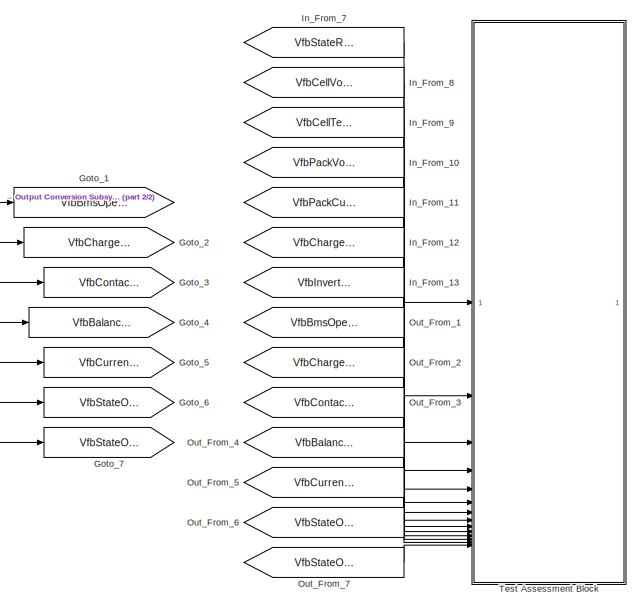
[diagram: root canvas - part 1/2, right side, full height]
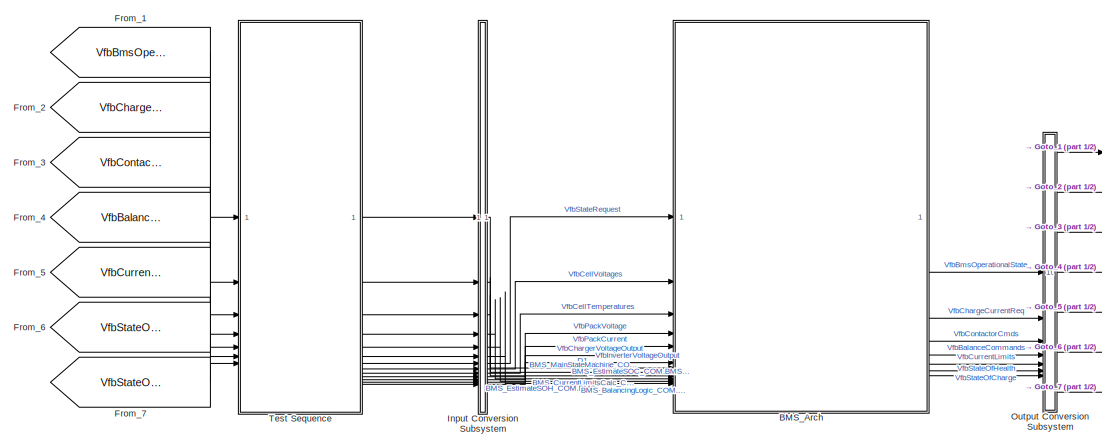
[diagram: root canvas - part 2/2, middle left region]
MODEL slx_618e8ea92ad0
KIND model
CONFIG AbsTol = auto
CONFIG EnableMultiTasking = on
CONFIG FixedStep = auto
CONFIG MaxStep = auto
CONFIG MinStep = auto
CONFIG RelTol = 1e-3
CONFIG SampleTimeConstraint = Unconstrained
CONFIG SolverName = FixedStepDiscrete
CONFIG StartTime = 0.0
CONFIG StopTime = 10.0
BLOCK [ModelReference] BMS_Arch
  AutoFillPortDiscreteRates = off
  CachedPortDiscreteRates = {'',0.05;'BMS_MainStateMachine_COM.BMS_MainStateMachine_Task',0.05;'BMS_CurrentLimitsCalc_COM.BMS_CurrentLimitsCalc_Task',0.1;'BMS_EstimateSOC_COM.BMS_EstimateSOC_Task',0.2;'BMS_EstimateSOH_COM.BMS_EstimateSOH_Task',0.2;'BMS_BalancingLogic_COM.BMS_BalancingLogic_Task',0.25}
  ModelEventPortInfo = P:D1[0.05][0][0],P:BMS_MainStateMachine_COM.BMS_MainStateMachine_Task[0.05][1][0],P:BMS_CurrentLimitsCalc_COM.BMS_CurrentLimitsCalc_Task[0.1][1][0],P:BMS_EstimateSOC_COM.BMS_EstimateSOC_Task[0.2][1][0],P:BMS_EstimateSOH_COM.BMS_EstimateSOH_Task[0.2][1][0],P:BMS_BalancingLogic_COM.BMS_BalancingLogic_Task[0.25][1][0]
  ModelNameDialog = BMS_Arch
  ModelReferenceVersion = 1.62
  PortDiscreteRates = {'',0.05;'BMS_MainStateMachine_COM.BMS_MainStateMachine_Task',0.05;'BMS_CurrentLimitsCalc_COM.BMS_CurrentLimitsCalc_Task',0.1;'BMS_EstimateSOC_COM.BMS_EstimateSOC_Task',0.2;'BMS_EstimateSOH_COM.BMS_EstimateSOH_Task',0.2;'BMS_BalancingLogic_COM.BMS_BalancingLogic_Task',0.25}
  ScheduleRates = on
BLOCK [From] From_1
  GotoTag = VfbBmsOperationalState_S
BLOCK [From] From_2
  GotoTag = VfbChargeCurrentReq_S
BLOCK [From] From_3
  GotoTag = VfbContactorCmds_S
BLOCK [From] From_4
  GotoTag = VfbBalanceCommands_S
BLOCK [From] From_5
  GotoTag = VfbCurrentLimits_S
BLOCK [From] From_6
  GotoTag = VfbStateOfCharge_S
BLOCK [From] From_7
  GotoTag = VfbStateOfHealth_S
BLOCK [Goto] Goto_1
  GotoTag = VfbBmsOperationalState_S
BLOCK [Goto] Goto_2
  GotoTag = VfbChargeCurrentReq_S
BLOCK [Goto] Goto_3
  GotoTag = VfbContactorCmds_S
BLOCK [Goto] Goto_4
  GotoTag = VfbBalanceCommands_S
BLOCK [Goto] Goto_5
  GotoTag = VfbCurrentLimits_S
BLOCK [Goto] Goto_6
  GotoTag = VfbStateOfCharge_S
BLOCK [Goto] Goto_7
  GotoTag = VfbStateOfHealth_S
BLOCK [From] In_From_10
  GotoTag = VfbPackVoltage_A
  TagVisibility = global
BLOCK [From] In_From_11
  GotoTag = VfbPackCurrent_A
  TagVisibility = global
BLOCK [From] In_From_12
  GotoTag = VfbChargerVoltageOutput_A
  TagVisibility = global
BLOCK [From] In_From_13
  GotoTag = VfbInverterVoltageOutput_A
  TagVisibility = global
BLOCK [From] In_From_7
  GotoTag = VfbStateRequest_A
  TagVisibility = global
BLOCK [From] In_From_8
  GotoTag = VfbCellVoltages_A
  TagVisibility = global
BLOCK [From] In_From_9
  GotoTag = VfbCellTemperatures_A
  TagVisibility = global
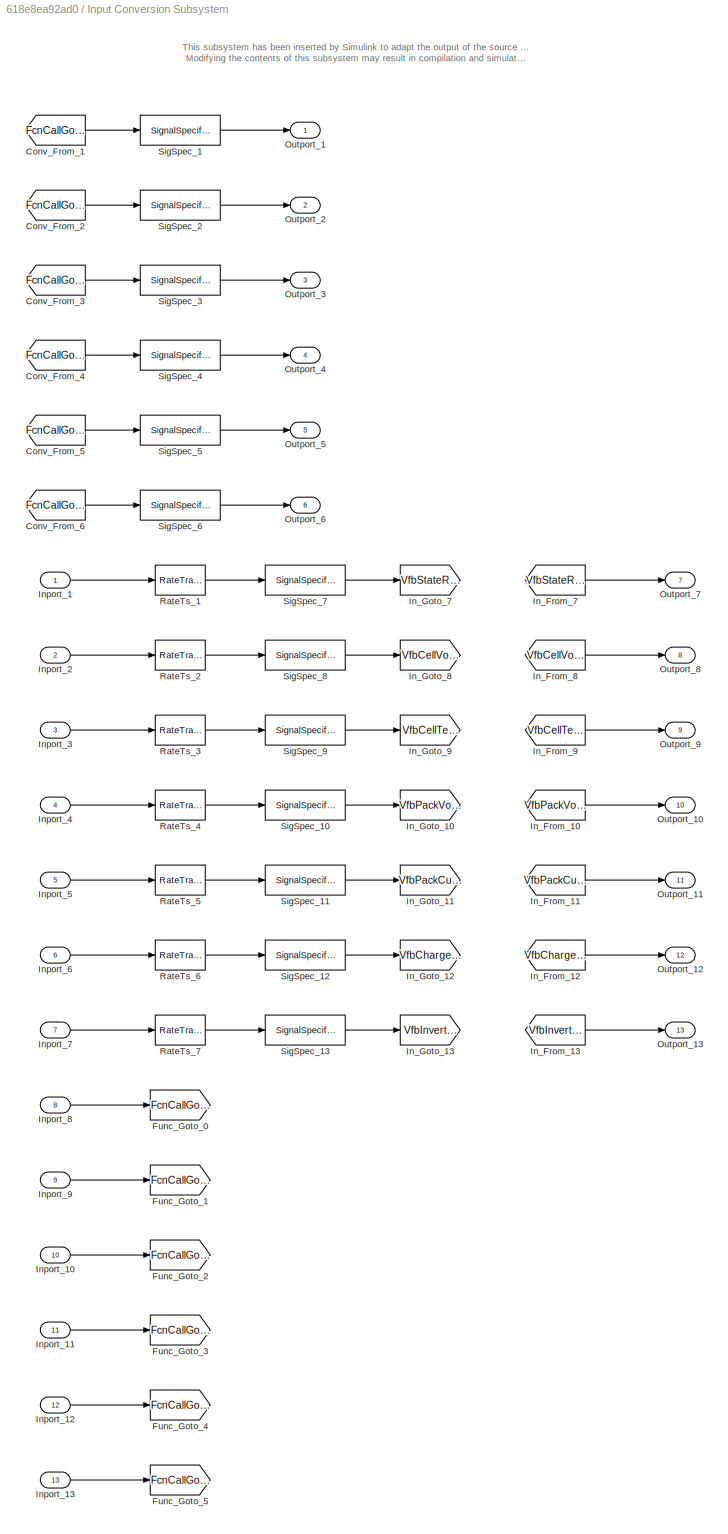
BLOCK [SubSystem] Input Conversion Subsystem
  AttributesFormatString = %<Description>
  Description = Signal spec.\nand routing
  Permissions = ReadOnly
  PermitHierarchicalResolution = ExplicitOnly
  Tag = __SLT_ICS__
  TreatAsGroupedWhenPropagatingVariantConditions = off
  UserDataPersistent = on
BLOCK [From] Input Conversion Subsystem/Conv_From_1
  GotoTag = FcnCallGotoTag1
BLOCK [From] Input Conversion Subsystem/Conv_From_2
  GotoTag = FcnCallGotoTag2
BLOCK [From] Input Conversion Subsystem/Conv_From_3
  GotoTag = FcnCallGotoTag3
BLOCK [From] Input Conversion Subsystem/Conv_From_4
  GotoTag = FcnCallGotoTag4
BLOCK [From] Input Conversion Subsystem/Conv_From_5
  GotoTag = FcnCallGotoTag5
BLOCK [From] Input Conversion Subsystem/Conv_From_6
  GotoTag = FcnCallGotoTag6
BLOCK [Goto] Input Conversion Subsystem/Func_Goto_0
  GotoTag = FcnCallGotoTag1
BLOCK [Goto] Input Conversion Subsystem/Func_Goto_1
  GotoTag = FcnCallGotoTag2
BLOCK [Goto] Input Conversion Subsystem/Func_Goto_2
  GotoTag = FcnCallGotoTag3
BLOCK [Goto] Input Conversion Subsystem/Func_Goto_3
  GotoTag = FcnCallGotoTag4
BLOCK [Goto] Input Conversion Subsystem/Func_Goto_4
  GotoTag = FcnCallGotoTag5
BLOCK [Goto] Input Conversion Subsystem/Func_Goto_5
  GotoTag = FcnCallGotoTag6
BLOCK [From] Input Conversion Subsystem/In_From_10
  GotoTag = VfbPackVoltage_A
  TagVisibility = global
BLOCK [From] Input Conversion Subsystem/In_From_11
  GotoTag = VfbPackCurrent_A
  TagVisibility = global
BLOCK [From] Input Conversion Subsystem/In_From_12
  GotoTag = VfbChargerVoltageOutput_A
  TagVisibility = global
BLOCK [From] Input Conversion Subsystem/In_From_13
  GotoTag = VfbInverterVoltageOutput_A
  TagVisibility = global
BLOCK [From] Input Conversion Subsystem/In_From_7
  GotoTag = VfbStateRequest_A
  TagVisibility = global
BLOCK [From] Input Conversion Subsystem/In_From_8
  GotoTag = VfbCellVoltages_A
  TagVisibility = global
BLOCK [From] Input Conversion Subsystem/In_From_9
  GotoTag = VfbCellTemperatures_A
  TagVisibility = global
BLOCK [Goto] Input Conversion Subsystem/In_Goto_10
  GotoTag = VfbPackVoltage_A
  TagVisibility = global
BLOCK [Goto] Input Conversion Subsystem/In_Goto_11
  GotoTag = VfbPackCurrent_A
  TagVisibility = global
BLOCK [Goto] Input Conversion Subsystem/In_Goto_12
  GotoTag = VfbChargerVoltageOutput_A
  TagVisibility = global
BLOCK [Goto] Input Conversion Subsystem/In_Goto_13
  GotoTag = VfbInverterVoltageOutput_A
  TagVisibility = global
BLOCK [Goto] Input Conversion Subsystem/In_Goto_7
  GotoTag = VfbStateRequest_A
  TagVisibility = global
BLOCK [Goto] Input Conversion Subsystem/In_Goto_8
  GotoTag = VfbCellVoltages_A
  TagVisibility = global
BLOCK [Goto] Input Conversion Subsystem/In_Goto_9
  GotoTag = VfbCellTemperatures_A
  TagVisibility = global
BLOCK [Inport] Input Conversion Subsystem/Inport_1
BLOCK [Inport] Input Conversion Subsystem/Inport_10
  Port = 10
BLOCK [Inport] Input Conversion Subsystem/Inport_11
  Port = 11
BLOCK [Inport] Input Conversion Subsystem/Inport_12
  Port = 12
BLOCK [Inport] Input Conversion Subsystem/Inport_13
  Port = 13
BLOCK [Inport] Input Conversion Subsystem/Inport_2
  Port = 2
BLOCK [Inport] Input Conversion Subsystem/Inport_3
  Port = 3
BLOCK [Inport] Input Conversion Subsystem/Inport_4
  Port = 4
BLOCK [Inport] Input Conversion Subsystem/Inport_5
  Port = 5
BLOCK [Inport] Input Conversion Subsystem/Inport_6
  Port = 6
BLOCK [Inport] Input Conversion Subsystem/Inport_7
  Port = 7
BLOCK [Inport] Input Conversion Subsystem/Inport_8
  Port = 8
BLOCK [Inport] Input Conversion Subsystem/Inport_9
  Port = 9
BLOCK [Outport] Input Conversion Subsystem/Outport_1
BLOCK [Outport] Input Conversion Subsystem/Outport_10
  Port = 10
BLOCK [Outport] Input Conversion Subsystem/Outport_11
  Port = 11
BLOCK [Outport] Input Conversion Subsystem/Outport_12
  Port = 12
BLOCK [Outport] Input Conversion Subsystem/Outport_13
  Port = 13
BLOCK [Outport] Input Conversion Subsystem/Outport_2
  Port = 2
BLOCK [Outport] Input Conversion Subsystem/Outport_3
  Port = 3
BLOCK [Outport] Input Conversion Subsystem/Outport_4
  Port = 4
BLOCK [Outport] Input Conversion Subsystem/Outport_5
  Port = 5
BLOCK [Outport] Input Conversion Subsystem/Outport_6
  Port = 6
BLOCK [Outport] Input Conversion Subsystem/Outport_7
  Port = 7
BLOCK [Outport] Input Conversion Subsystem/Outport_8
  Port = 8
BLOCK [Outport] Input Conversion Subsystem/Outport_9
  Port = 9
BLOCK [RateTransition] Input Conversion Subsystem/RateTs_1
  InitialCondition = BMS_State_Enum.BMS_Standby
BLOCK [RateTransition] Input Conversion Subsystem/RateTs_2
BLOCK [RateTransition] Input Conversion Subsystem/RateTs_3
BLOCK [RateTransition] Input Conversion Subsystem/RateTs_4
BLOCK [RateTransition] Input Conversion Subsystem/RateTs_5
BLOCK [RateTransition] Input Conversion Subsystem/RateTs_6
BLOCK [RateTransition] Input Conversion Subsystem/RateTs_7
BLOCK [SignalSpecification] Input Conversion Subsystem/SigSpec_1
BLOCK [SignalSpecification] Input Conversion Subsystem/SigSpec_10
  Dimensions = [1]
  OutDataTypeStr = single
  SignalType = real
  Unit = V
  VarSizeSig = No
BLOCK [SignalSpecification] Input Conversion Subsystem/SigSpec_11
  Dimensions = [1]
  OutDataTypeStr = single
  SignalType = real
  Unit = A
  VarSizeSig = No
BLOCK [SignalSpecification] Input Conversion Subsystem/SigSpec_12
  Dimensions = [1]
  OutDataTypeStr = single
  SignalType = real
  Unit = V
  VarSizeSig = No
BLOCK [SignalSpecification] Input Conversion Subsystem/SigSpec_13
  Dimensions = [1]
  OutDataTypeStr = single
  SignalType = real
  Unit = V
  VarSizeSig = No
BLOCK [SignalSpecification] Input Conversion Subsystem/SigSpec_2
BLOCK [SignalSpecification] Input Conversion Subsystem/SigSpec_3
BLOCK [SignalSpecification] Input Conversion Subsystem/SigSpec_4
BLOCK [SignalSpecification] Input Conversion Subsystem/SigSpec_5
BLOCK [SignalSpecification] Input Conversion Subsystem/SigSpec_6
BLOCK [SignalSpecification] Input Conversion Subsystem/SigSpec_7
  Dimensions = [1]
  OutDataTypeStr = Enum: BMS_State_Enum
  SignalType = real
  VarSizeSig = No
BLOCK [SignalSpecification] Input Conversion Subsystem/SigSpec_8
  Dimensions = [1]
  OutDataTypeStr = single
  SignalType = real
  Unit = V
  VarSizeSig = No
BLOCK [SignalSpecification] Input Conversion Subsystem/SigSpec_9
  Dimensions = [1]
  OutDataTypeStr = single
  SignalType = real
  Unit = °C
  VarSizeSig = No
BLOCK [From] Out_From_1
  GotoTag = VfbBmsOperationalState_A
  TagVisibility = global
BLOCK [From] Out_From_2
  GotoTag = VfbChargeCurrentReq_A
  TagVisibility = global
BLOCK [From] Out_From_3
  GotoTag = VfbContactorCmds_A
  TagVisibility = global
BLOCK [From] Out_From_4
  GotoTag = VfbBalanceCommands_A
  TagVisibility = global
BLOCK [From] Out_From_5
  GotoTag = VfbCurrentLimits_A
  TagVisibility = global
BLOCK [From] Out_From_6
  GotoTag = VfbStateOfCharge_A
  TagVisibility = global
BLOCK [From] Out_From_7
  GotoTag = VfbStateOfHealth_A
  TagVisibility = global
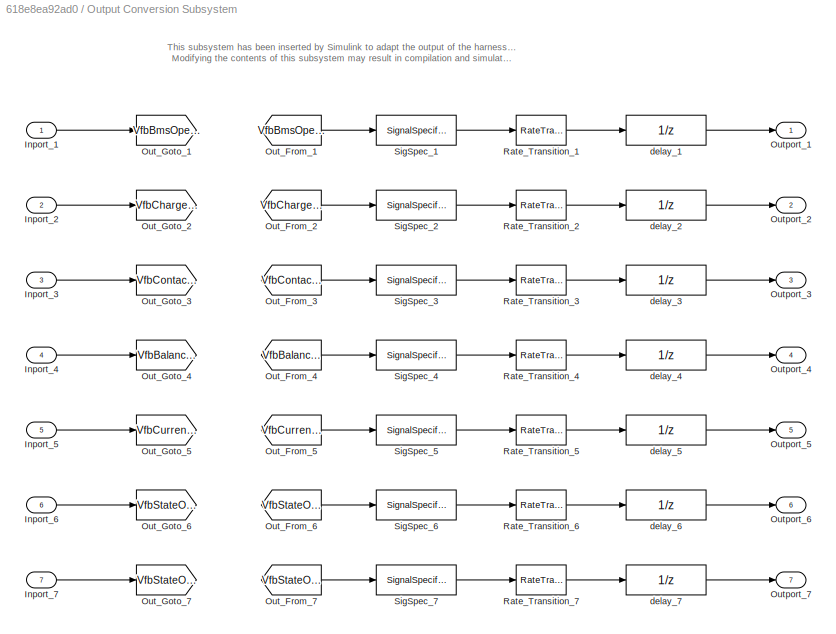
BLOCK [SubSystem] Output Conversion Subsystem
  AttributesFormatString = %<Description>
  Description = Signal spec.\nand routing
  Permissions = ReadOnly
  PermitHierarchicalResolution = ExplicitOnly
  Tag = __SLT_OCS__
  TreatAsGroupedWhenPropagatingVariantConditions = off
  UserDataPersistent = on
BLOCK [Inport] Output Conversion Subsystem/Inport_1
BLOCK [Inport] Output Conversion Subsystem/Inport_2
  Port = 2
BLOCK [Inport] Output Conversion Subsystem/Inport_3
  Port = 3
BLOCK [Inport] Output Conversion Subsystem/Inport_4
  Port = 4
BLOCK [Inport] Output Conversion Subsystem/Inport_5
  Port = 5
BLOCK [Inport] Output Conversion Subsystem/Inport_6
  Port = 6
BLOCK [Inport] Output Conversion Subsystem/Inport_7
  Port = 7
BLOCK [From] Output Conversion Subsystem/Out_From_1
  GotoTag = VfbBmsOperationalState_A
  TagVisibility = global
BLOCK [From] Output Conversion Subsystem/Out_From_2
  GotoTag = VfbChargeCurrentReq_A
  TagVisibility = global
BLOCK [From] Output Conversion Subsystem/Out_From_3
  GotoTag = VfbContactorCmds_A
  TagVisibility = global
BLOCK [From] Output Conversion Subsystem/Out_From_4
  GotoTag = VfbBalanceCommands_A
  TagVisibility = global
BLOCK [From] Output Conversion Subsystem/Out_From_5
  GotoTag = VfbCurrentLimits_A
  TagVisibility = global
BLOCK [From] Output Conversion Subsystem/Out_From_6
  GotoTag = VfbStateOfCharge_A
  TagVisibility = global
BLOCK [From] Output Conversion Subsystem/Out_From_7
  GotoTag = VfbStateOfHealth_A
  TagVisibility = global
BLOCK [Goto] Output Conversion Subsystem/Out_Goto_1
  GotoTag = VfbBmsOperationalState_A
  TagVisibility = global
BLOCK [Goto] Output Conversion Subsystem/Out_Goto_2
  GotoTag = VfbChargeCurrentReq_A
  TagVisibility = global
BLOCK [Goto] Output Conversion Subsystem/Out_Goto_3
  GotoTag = VfbContactorCmds_A
  TagVisibility = global
BLOCK [Goto] Output Conversion Subsystem/Out_Goto_4
  GotoTag = VfbBalanceCommands_A
  TagVisibility = global
BLOCK [Goto] Output Conversion Subsystem/Out_Goto_5
  GotoTag = VfbCurrentLimits_A
  TagVisibility = global
BLOCK [Goto] Output Conversion Subsystem/Out_Goto_6
  GotoTag = VfbStateOfCharge_A
  TagVisibility = global
BLOCK [Goto] Output Conversion Subsystem/Out_Goto_7
  GotoTag = VfbStateOfHealth_A
  TagVisibility = global
BLOCK [Outport] Output Conversion Subsystem/Outport_1
BLOCK [Outport] Output Conversion Subsystem/Outport_2
  Port = 2
BLOCK [Outport] Output Conversion Subsystem/Outport_3
  Port = 3
BLOCK [Outport] Output Conversion Subsystem/Outport_4
  Port = 4
BLOCK [Outport] Output Conversion Subsystem/Outport_5
  Port = 5
BLOCK [Outport] Output Conversion Subsystem/Outport_6
  Port = 6
BLOCK [Outport] Output Conversion Subsystem/Outport_7
  Port = 7
BLOCK [RateTransition] Output Conversion Subsystem/Rate_Transition_1
  InitialCondition = BMS_State_Enum.BMS_Standby
  OutPortSampleTimeOpt = Inherit
BLOCK [RateTransition] Output Conversion Subsystem/Rate_Transition_2
  OutPortSampleTimeOpt = Inherit
BLOCK [RateTransition] Output Conversion Subsystem/Rate_Transition_3
  OutPortSampleTimeOpt = Inherit
BLOCK [RateTransition] Output Conversion Subsystem/Rate_Transition_4
  OutPortSampleTimeOpt = Inherit
BLOCK [RateTransition] Output Conversion Subsystem/Rate_Transition_5
  OutPortSampleTimeOpt = Inherit
BLOCK [RateTransition] Output Conversion Subsystem/Rate_Transition_6
  OutPortSampleTimeOpt = Inherit
BLOCK [RateTransition] Output Conversion Subsystem/Rate_Transition_7
  OutPortSampleTimeOpt = Inherit
BLOCK [SignalSpecification] Output Conversion Subsystem/SigSpec_1
  Dimensions = [1]
  OutDataTypeStr = Enum: BMS_State_Enum
  SignalType = real
  VarSizeSig = No
BLOCK [SignalSpecification] Output Conversion Subsystem/SigSpec_2
  Dimensions = [1]
  OutDataTypeStr = single
  SignalType = real
  Unit = A
  VarSizeSig = No
BLOCK [SignalSpecification] Output Conversion Subsystem/SigSpec_3
  BusOutputAsStruct = on
  Dimensions = [1]
  OutDataTypeStr = Bus: BMS_strContactorCmds
  SignalType = real
  VarSizeSig = No
BLOCK [SignalSpecification] Output Conversion Subsystem/SigSpec_4
  Dimensions = [1]
  OutDataTypeStr = boolean
  SignalType = real
  VarSizeSig = No
BLOCK [SignalSpecification] Output Conversion Subsystem/SigSpec_5
  Dimensions = [2]
  OutDataTypeStr = single
  SignalType = real
  Unit = A
  VarSizeSig = No
BLOCK [SignalSpecification] Output Conversion Subsystem/SigSpec_6
  Dimensions = [3]
  OutDataTypeStr = single
  SignalType = real
  Unit = %
  VarSizeSig = No
BLOCK [SignalSpecification] Output Conversion Subsystem/SigSpec_7
  Dimensions = [3]
  OutDataTypeStr = single
  SignalType = real
  Unit = %
  VarSizeSig = No
BLOCK [UnitDelay] Output Conversion Subsystem/delay_1
  InitialCondition = BMS_State_Enum.BMS_Standby
  SampleTime = -1
BLOCK [UnitDelay] Output Conversion Subsystem/delay_2
  SampleTime = -1
BLOCK [UnitDelay] Output Conversion Subsystem/delay_3
  InitialCondition = IC3
  SampleTime = -1
BLOCK [UnitDelay] Output Conversion Subsystem/delay_4
  SampleTime = -1
BLOCK [UnitDelay] Output Conversion Subsystem/delay_5
  SampleTime = -1
BLOCK [UnitDelay] Output Conversion Subsystem/delay_6
  SampleTime = -1
BLOCK [UnitDelay] Output Conversion Subsystem/delay_7
  SampleTime = -1
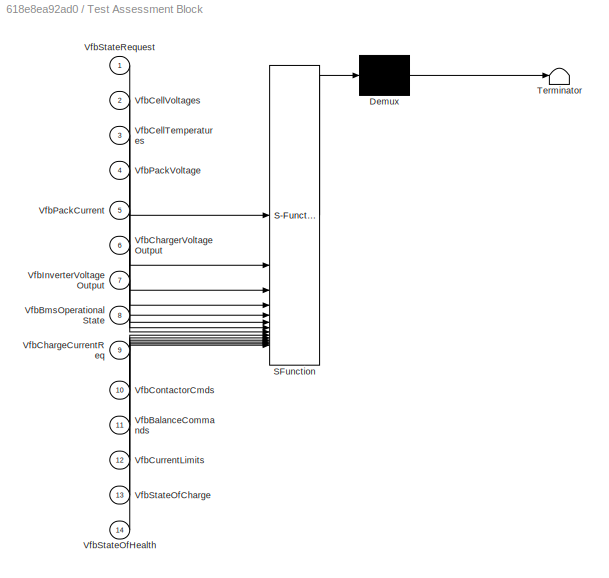
BLOCK [SubSystem] Test Assessment Block
  ErrorFcn = Stateflow.Translate.translate
  PermitHierarchicalResolution = ExplicitOnly
  SFBlockType = Test Sequence
  ShowPortLabels = none
  Tag = __SLT_ASMT__
  TreatAsAtomicUnit = on
BLOCK [Demux] Test Assessment Block/ Demux 
  Outputs = 1
BLOCK [S-Function] Test Assessment Block/ SFunction 
  EnableBusSupport = off
  FunctionName = sf_sfun
  PortCounts = [14 1]
  SFcnIsStateOwnerBlock = off
  SFunctionDeploymentMode = off
  Tag = Stateflow S-Function 1
BLOCK [Terminator] Test Assessment Block/ Terminator 
BLOCK [Inport] Test Assessment Block/VfbBalanceCommands
  Port = 11
BLOCK [Inport] Test Assessment Block/VfbBmsOperationalState
  Port = 8
BLOCK [Inport] Test Assessment Block/VfbCellTemperatures
  Port = 3
BLOCK [Inport] Test Assessment Block/VfbCellVoltages
  Port = 2
BLOCK [Inport] Test Assessment Block/VfbChargeCurrentReq
  Port = 9
BLOCK [Inport] Test Assessment Block/VfbChargerVoltageOutput
  Port = 6
BLOCK [Inport] Test Assessment Block/VfbContactorCmds
  Port = 10
BLOCK [Inport] Test Assessment Block/VfbCurrentLimits
  Port = 12
BLOCK [Inport] Test Assessment Block/VfbInverterVoltageOutput
  Port = 7
BLOCK [Inport] Test Assessment Block/VfbPackCurrent
  Port = 5
BLOCK [Inport] Test Assessment Block/VfbPackVoltage
  Port = 4
BLOCK [Inport] Test Assessment Block/VfbStateOfCharge
  Port = 13
BLOCK [Inport] Test Assessment Block/VfbStateOfHealth
  Port = 14
BLOCK [Inport] Test Assessment Block/VfbStateRequest
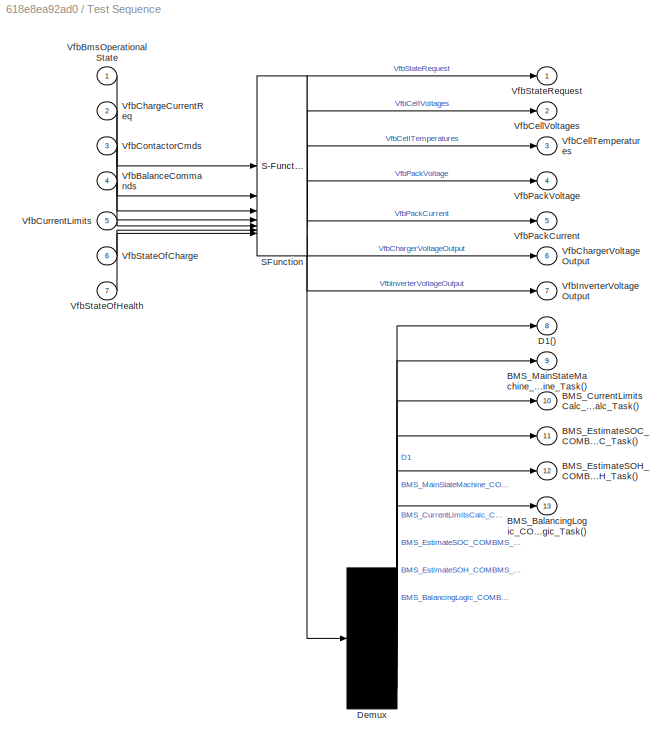
BLOCK [SubSystem] Test Sequence
  ErrorFcn = Stateflow.Translate.translate
  PermitHierarchicalResolution = ExplicitOnly
  SFBlockType = Test Sequence
  ShowPortLabels = none
  TreatAsAtomicUnit = on
BLOCK [Demux] Test Sequence/ Demux 
  Outputs = 6
BLOCK [S-Function] Test Sequence/ SFunction 
  EnableBusSupport = off
  FunctionName = sf_sfun
  PortCounts = [7 8]
  SFcnIsStateOwnerBlock = off
  SFunctionDeploymentMode = off
  Tag = Stateflow S-Function 4
BLOCK [Outport] Test Sequence/BMS_BalancingLogic_COMBMS_BalancingLogic_Task()
  Port = 13
BLOCK [Outport] Test Sequence/BMS_CurrentLimitsCalc_COMBMS_CurrentLimitsCalc_Task()
  Port = 10
BLOCK [Outport] Test Sequence/BMS_EstimateSOC_COMBMS_EstimateSOC_Task()
  Port = 11
BLOCK [Outport] Test Sequence/BMS_EstimateSOH_COMBMS_EstimateSOH_Task()
  Port = 12
BLOCK [Outport] Test Sequence/BMS_MainStateMachine_COMBMS_MainStateMachine_Task()
  Port = 9
BLOCK [Outport] Test Sequence/D1()
  Port = 8
BLOCK [Inport] Test Sequence/VfbBalanceCommands
  Port = 4
BLOCK [Inport] Test Sequence/VfbBmsOperationalState
BLOCK [Outport] Test Sequence/VfbCellTemperatures
  Port = 3
BLOCK [Outport] Test Sequence/VfbCellVoltages
  Port = 2
BLOCK [Inport] Test Sequence/VfbChargeCurrentReq
  Port = 2
BLOCK [Outport] Test Sequence/VfbChargerVoltageOutput
  Port = 6
BLOCK [Inport] Test Sequence/VfbContactorCmds
  Port = 3
BLOCK [Inport] Test Sequence/VfbCurrentLimits
  Port = 5
BLOCK [Outport] Test Sequence/VfbInverterVoltageOutput
  Port = 7
BLOCK [Outport] Test Sequence/VfbPackCurrent
  Port = 5
BLOCK [Outport] Test Sequence/VfbPackVoltage
  Port = 4
BLOCK [Inport] Test Sequence/VfbStateOfCharge
  Port = 6
BLOCK [Inport] Test Sequence/VfbStateOfHealth
  Port = 7
BLOCK [Outport] Test Sequence/VfbStateRequest
ANNOTATION Input Conversion Subsystem: This subsystem has been inserted by Simulink to adapt the output of the source blocks to the interface required by the harnessed component. Modifying the contents of this subsystem may result in compilation and simulation failure.
ANNOTATION Output Conversion Subsystem: This subsystem has been inserted by Simulink to adapt the output of the harnessed component to the interface required by the sink blocks. Modifying the contents of this subsystem may result in compilation and simulation failure.
LINE BMS_Arch:1 -> Output Conversion Subsystem:1
LINE BMS_Arch:2 -> Output Conversion Subsystem:2
LINE BMS_Arch:3 -> Output Conversion Subsystem:3
LINE BMS_Arch:4 -> Output Conversion Subsystem:4
LINE BMS_Arch:5 -> Output Conversion Subsystem:5
LINE BMS_Arch:6 -> Output Conversion Subsystem:6
LINE BMS_Arch:7 -> Output Conversion Subsystem:7
LINE From_1:1 -> Test Sequence:1
LINE From_2:1 -> Test Sequence:2
LINE From_3:1 -> Test Sequence:3
LINE From_4:1 -> Test Sequence:4
LINE From_5:1 -> Test Sequence:5
LINE From_6:1 -> Test Sequence:6
LINE From_7:1 -> Test Sequence:7
LINE In_From_10:1 -> Test Assessment Block:4
LINE In_From_11:1 -> Test Assessment Block:5
LINE In_From_12:1 -> Test Assessment Block:6
LINE In_From_13:1 -> Test Assessment Block:7
LINE In_From_7:1 -> Test Assessment Block:1
LINE In_From_8:1 -> Test Assessment Block:2
LINE In_From_9:1 -> Test Assessment Block:3
LINE Input Conversion Subsystem/Conv_From_1:1 -> Input Conversion Subsystem/SigSpec_1:1
LINE Input Conversion Subsystem/Conv_From_2:1 -> Input Conversion Subsystem/SigSpec_2:1
LINE Input Conversion Subsystem/Conv_From_3:1 -> Input Conversion Subsystem/SigSpec_3:1
LINE Input Conversion Subsystem/Conv_From_4:1 -> Input Conversion Subsystem/SigSpec_4:1
LINE Input Conversion Subsystem/Conv_From_5:1 -> Input Conversion Subsystem/SigSpec_5:1
LINE Input Conversion Subsystem/Conv_From_6:1 -> Input Conversion Subsystem/SigSpec_6:1
LINE Input Conversion Subsystem/In_From_10:1 -> Input Conversion Subsystem/Outport_10:1
LINE Input Conversion Subsystem/In_From_11:1 -> Input Conversion Subsystem/Outport_11:1
LINE Input Conversion Subsystem/In_From_12:1 -> Input Conversion Subsystem/Outport_12:1
LINE Input Conversion Subsystem/In_From_13:1 -> Input Conversion Subsystem/Outport_13:1
LINE Input Conversion Subsystem/In_From_7:1 -> Input Conversion Subsystem/Outport_7:1
LINE Input Conversion Subsystem/In_From_8:1 -> Input Conversion Subsystem/Outport_8:1
LINE Input Conversion Subsystem/In_From_9:1 -> Input Conversion Subsystem/Outport_9:1
LINE Input Conversion Subsystem/Inport_10:1 -> Input Conversion Subsystem/Func_Goto_2:1
LINE Input Conversion Subsystem/Inport_11:1 -> Input Conversion Subsystem/Func_Goto_3:1
LINE Input Conversion Subsystem/Inport_12:1 -> Input Conversion Subsystem/Func_Goto_4:1
LINE Input Conversion Subsystem/Inport_13:1 -> Input Conversion Subsystem/Func_Goto_5:1
LINE Input Conversion Subsystem/Inport_1:1 -> Input Conversion Subsystem/RateTs_1:1
LINE Input Conversion Subsystem/Inport_2:1 -> Input Conversion Subsystem/RateTs_2:1
LINE Input Conversion Subsystem/Inport_3:1 -> Input Conversion Subsystem/RateTs_3:1
LINE Input Conversion Subsystem/Inport_4:1 -> Input Conversion Subsystem/RateTs_4:1
LINE Input Conversion Subsystem/Inport_5:1 -> Input Conversion Subsystem/RateTs_5:1
LINE Input Conversion Subsystem/Inport_6:1 -> Input Conversion Subsystem/RateTs_6:1
LINE Input Conversion Subsystem/Inport_7:1 -> Input Conversion Subsystem/RateTs_7:1
LINE Input Conversion Subsystem/Inport_8:1 -> Input Conversion Subsystem/Func_Goto_0:1
LINE Input Conversion Subsystem/Inport_9:1 -> Input Conversion Subsystem/Func_Goto_1:1
LINE Input Conversion Subsystem/RateTs_1:1 -> Input Conversion Subsystem/SigSpec_7:1
LINE Input Conversion Subsystem/RateTs_2:1 -> Input Conversion Subsystem/SigSpec_8:1
LINE Input Conversion Subsystem/RateTs_3:1 -> Input Conversion Subsystem/SigSpec_9:1
LINE Input Conversion Subsystem/RateTs_4:1 -> Input Conversion Subsystem/SigSpec_10:1
LINE Input Conversion Subsystem/RateTs_5:1 -> Input Conversion Subsystem/SigSpec_11:1
LINE Input Conversion Subsystem/RateTs_6:1 -> Input Conversion Subsystem/SigSpec_12:1
LINE Input Conversion Subsystem/RateTs_7:1 -> Input Conversion Subsystem/SigSpec_13:1
LINE Input Conversion Subsystem/SigSpec_10:1 -> Input Conversion Subsystem/In_Goto_10:1
LINE Input Conversion Subsystem/SigSpec_11:1 -> Input Conversion Subsystem/In_Goto_11:1
LINE Input Conversion Subsystem/SigSpec_12:1 -> Input Conversion Subsystem/In_Goto_12:1
LINE Input Conversion Subsystem/SigSpec_13:1 -> Input Conversion Subsystem/In_Goto_13:1
LINE Input Conversion Subsystem/SigSpec_1:1 -> Input Conversion Subsystem/Outport_1:1
LINE Input Conversion Subsystem/SigSpec_2:1 -> Input Conversion Subsystem/Outport_2:1
LINE Input Conversion Subsystem/SigSpec_3:1 -> Input Conversion Subsystem/Outport_3:1
LINE Input Conversion Subsystem/SigSpec_4:1 -> Input Conversion Subsystem/Outport_4:1
LINE Input Conversion Subsystem/SigSpec_5:1 -> Input Conversion Subsystem/Outport_5:1
LINE Input Conversion Subsystem/SigSpec_6:1 -> Input Conversion Subsystem/Outport_6:1
LINE Input Conversion Subsystem/SigSpec_7:1 -> Input Conversion Subsystem/In_Goto_7:1
LINE Input Conversion Subsystem/SigSpec_8:1 -> Input Conversion Subsystem/In_Goto_8:1
LINE Input Conversion Subsystem/SigSpec_9:1 -> Input Conversion Subsystem/In_Goto_9:1
LINE Input Conversion Subsystem:1 -> BMS_Arch:8
LINE Input Conversion Subsystem:10 -> BMS_Arch:4
LINE Input Conversion Subsystem:11 -> BMS_Arch:5
LINE Input Conversion Subsystem:12 -> BMS_Arch:6
LINE Input Conversion Subsystem:13 -> BMS_Arch:7
LINE Input Conversion Subsystem:2 -> BMS_Arch:9
LINE Input Conversion Subsystem:3 -> BMS_Arch:10
LINE Input Conversion Subsystem:4 -> BMS_Arch:11
LINE Input Conversion Subsystem:5 -> BMS_Arch:12
LINE Input Conversion Subsystem:6 -> BMS_Arch:13
LINE Input Conversion Subsystem:7 -> BMS_Arch:1
LINE Input Conversion Subsystem:8 -> BMS_Arch:2
LINE Input Conversion Subsystem:9 -> BMS_Arch:3
LINE Out_From_1:1 -> Test Assessment Block:8
LINE Out_From_2:1 -> Test Assessment Block:9
LINE Out_From_3:1 -> Test Assessment Block:10
LINE Out_From_4:1 -> Test Assessment Block:11
LINE Out_From_5:1 -> Test Assessment Block:12
LINE Out_From_6:1 -> Test Assessment Block:13
LINE Out_From_7:1 -> Test Assessment Block:14
LINE Output Conversion Subsystem/Inport_1:1 -> Output Conversion Subsystem/Out_Goto_1:1
LINE Output Conversion Subsystem/Inport_2:1 -> Output Conversion Subsystem/Out_Goto_2:1
LINE Output Conversion Subsystem/Inport_3:1 -> Output Conversion Subsystem/Out_Goto_3:1
LINE Output Conversion Subsystem/Inport_4:1 -> Output Conversion Subsystem/Out_Goto_4:1
LINE Output Conversion Subsystem/Inport_5:1 -> Output Conversion Subsystem/Out_Goto_5:1
LINE Output Conversion Subsystem/Inport_6:1 -> Output Conversion Subsystem/Out_Goto_6:1
LINE Output Conversion Subsystem/Inport_7:1 -> Output Conversion Subsystem/Out_Goto_7:1
LINE Output Conversion Subsystem/Out_From_1:1 -> Output Conversion Subsystem/SigSpec_1:1
LINE Output Conversion Subsystem/Out_From_2:1 -> Output Conversion Subsystem/SigSpec_2:1
LINE Output Conversion Subsystem/Out_From_3:1 -> Output Conversion Subsystem/SigSpec_3:1
LINE Output Conversion Subsystem/Out_From_4:1 -> Output Conversion Subsystem/SigSpec_4:1
LINE Output Conversion Subsystem/Out_From_5:1 -> Output Conversion Subsystem/SigSpec_5:1
LINE Output Conversion Subsystem/Out_From_6:1 -> Output Conversion Subsystem/SigSpec_6:1
LINE Output Conversion Subsystem/Out_From_7:1 -> Output Conversion Subsystem/SigSpec_7:1
LINE Output Conversion Subsystem/Rate_Transition_1:1 -> Output Conversion Subsystem/delay_1:1
LINE Output Conversion Subsystem/Rate_Transition_2:1 -> Output Conversion Subsystem/delay_2:1
LINE Output Conversion Subsystem/Rate_Transition_3:1 -> Output Conversion Subsystem/delay_3:1
LINE Output Conversion Subsystem/Rate_Transition_4:1 -> Output Conversion Subsystem/delay_4:1
LINE Output Conversion Subsystem/Rate_Transition_5:1 -> Output Conversion Subsystem/delay_5:1
LINE Output Conversion Subsystem/Rate_Transition_6:1 -> Output Conversion Subsystem/delay_6:1
LINE Output Conversion Subsystem/Rate_Transition_7:1 -> Output Conversion Subsystem/delay_7:1
LINE Output Conversion Subsystem/SigSpec_1:1 -> Output Conversion Subsystem/Rate_Transition_1:1
LINE Output Conversion Subsystem/SigSpec_2:1 -> Output Conversion Subsystem/Rate_Transition_2:1
LINE Output Conversion Subsystem/SigSpec_3:1 -> Output Conversion Subsystem/Rate_Transition_3:1
LINE Output Conversion Subsystem/SigSpec_4:1 -> Output Conversion Subsystem/Rate_Transition_4:1
LINE Output Conversion Subsystem/SigSpec_5:1 -> Output Conversion Subsystem/Rate_Transition_5:1
LINE Output Conversion Subsystem/SigSpec_6:1 -> Output Conversion Subsystem/Rate_Transition_6:1
LINE Output Conversion Subsystem/SigSpec_7:1 -> Output Conversion Subsystem/Rate_Transition_7:1
LINE Output Conversion Subsystem/delay_1:1 -> Output Conversion Subsystem/Outport_1:1
LINE Output Conversion Subsystem/delay_2:1 -> Output Conversion Subsystem/Outport_2:1
LINE Output Conversion Subsystem/delay_3:1 -> Output Conversion Subsystem/Outport_3:1
LINE Output Conversion Subsystem/delay_4:1 -> Output Conversion Subsystem/Outport_4:1
LINE Output Conversion Subsystem/delay_5:1 -> Output Conversion Subsystem/Outport_5:1
LINE Output Conversion Subsystem/delay_6:1 -> Output Conversion Subsystem/Outport_6:1
LINE Output Conversion Subsystem/delay_7:1 -> Output Conversion Subsystem/Outport_7:1
LINE Output Conversion Subsystem:1 -> Goto_1:1
LINE Output Conversion Subsystem:2 -> Goto_2:1
LINE Output Conversion Subsystem:3 -> Goto_3:1
LINE Output Conversion Subsystem:4 -> Goto_4:1
LINE Output Conversion Subsystem:5 -> Goto_5:1
LINE Output Conversion Subsystem:6 -> Goto_6:1
LINE Output Conversion Subsystem:7 -> Goto_7:1
LINE Test Sequence:1 -> Input Conversion Subsystem:1
LINE Test Sequence:10 -> Input Conversion Subsystem:10
LINE Test Sequence:11 -> Input Conversion Subsystem:11
LINE Test Sequence:12 -> Input Conversion Subsystem:12
LINE Test Sequence:13 -> Input Conversion Subsystem:13
LINE Test Sequence:2 -> Input Conversion Subsystem:2
LINE Test Sequence:3 -> Input Conversion Subsystem:3
LINE Test Sequence:4 -> Input Conversion Subsystem:4
LINE Test Sequence:5 -> Input Conversion Subsystem:5
LINE Test Sequence:6 -> Input Conversion Subsystem:6
LINE Test Sequence:7 -> Input Conversion Subsystem:7
LINE Test Sequence:8 -> Input Conversion Subsystem:8
LINE Test Sequence:9 -> Input Conversion Subsystem:9
CHART Test Assessment Block states=3 transitions=10
  STATE_LABEL 'Run\n\n'
  STATE_LABEL 'step_1_1'
  STATE_LABEL 'step_1_2'
  STATE_LABEL '[t < 5\n]'
  STATE_LABEL '[~in(Run.step_1_1)]'
  STATE_LABEL '[~in(Run.step_1_2)]'
  STATE_LABEL 'step_1_1'
  STATE_LABEL 'step_1_2'
CHART Test Sequence states=1 transitions=1
  STATE_LABEL 'Run\n\n%% Initialize data outputs.\nVfbStateRequest = BMS_State_Enum.BMS_Standby;\nVfbCellVoltages = single(0);\nVfbCellTemperatures = single(0);\nVfbPackVoltage = single(0);\nVfbPackCurrent = single(0);\nVfbChargerVoltageOutput = single(0);\nVfbInverterVoltageOutput = single(0);\n\n\nsend(D1);\n\nsend(BMS_MainStateMachine_COMBMS_MainStateMachine_Task);\n\nif t == 0 || every(2, tick)\n    send(BMS_CurrentLimitsCal...<+295ch>'
